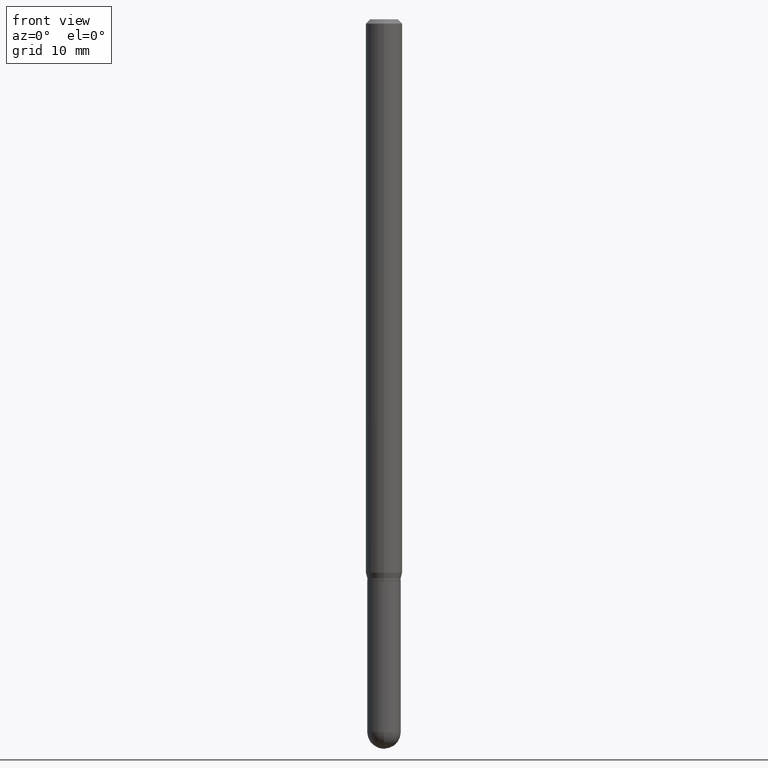
[diagram: clean part render]
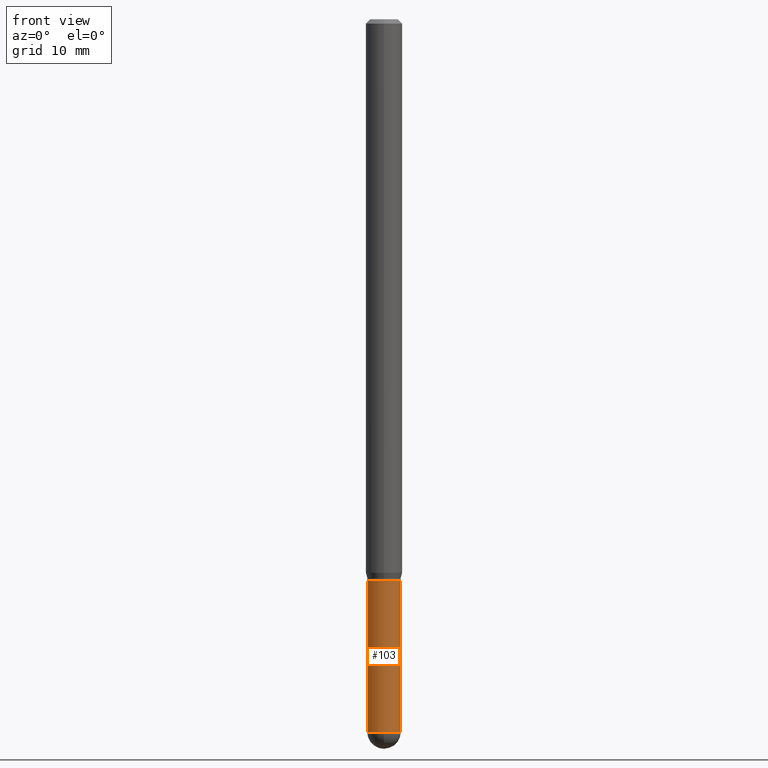
[diagram: same view with one face highlighted and labeled with its STEP entity id]
A machine part, front view. The second image highlights one B-rep face of the part: STEP entity #103.
In plain terms, the highlighted cylindrical surface (edge-blend (fillet) strip) has radius 1.4605 mm, axis along (-0, 0, 1).
Its self-contained STEP definition (entity closure, byte-faithful):
#13 = EDGE_CURVE ( 'NONE', #428, #29, #503, .T. ) ;
#29 = VERTEX_POINT ( 'NONE', #270 ) ;
#36 = DIRECTION ( 'NONE',  ( -2.445468806185136597E-29, 3.491481338843145583E-15, 1.000000000000000000 ) ) ;
#44 = CARTESIAN_POINT ( 'NONE',  ( 4.707527451906388285E-29, -6.721101577273056164E-15, -1.925000000000000044 ) ) ;
#51 = LINE ( 'NONE', #95, #54 ) ;
#54 = VECTOR ( 'NONE', #276, 39.37007874015748143 ) ;
#60 = DIRECTION ( 'NONE',  ( -2.445468806185136597E-29, 3.491481338843145583E-15, 1.000000000000000000 ) ) ;
#66 = CARTESIAN_POINT ( 'NONE',  ( 5.973057559107196227E-29, -8.527943170124383355E-15, -2.442499999999999893 ) ) ;
#72 = DIRECTION ( 'NONE',  ( 1.000000000000000000, -6.982962677686273810E-15, 0.000000000000000000 ) ) ;
#75 = DIRECTION ( 'NONE',  ( -2.445468806185136597E-29, 3.491481338843145583E-15, 1.000000000000000000 ) ) ;
#80 = EDGE_LOOP ( 'NONE', ( #196, #183, #355, #349, #440 ) ) ;
#95 = CARTESIAN_POINT ( 'NONE',  ( -0.05750000000000000250, 4.085620730620576246E-16, -2.828387676896570712E-30 ) ) ;
#103 = ADVANCED_FACE ( 'NONE', ( #385 ), #242, .T. ) ;
#104 = CARTESIAN_POINT ( 'NONE',  ( 0.05750000000000000250, -8.026042727665680963E-15, -2.442499999999999893 ) ) ;
#139 = EDGE_CURVE ( 'NONE', #282, #459, #482, .T. ) ;
#163 = DIRECTION ( 'NONE',  ( -2.445468806185136877E-29, 3.491481338843145188E-15, 1.000000000000000000 ) ) ;
#170 = DIRECTION ( 'NONE',  ( 1.000000000000000000, -6.982962677686273810E-15, 0.000000000000000000 ) ) ;
#180 = AXIS2_PLACEMENT_3D ( 'NONE', #460, #36, #416 ) ;
#183 = ORIENTED_EDGE ( 'NONE', *, *, #139, .T. ) ;
#196 = ORIENTED_EDGE ( 'NONE', *, *, #214, .F. ) ;
#197 = CARTESIAN_POINT ( 'NONE',  ( 5.973057559107196227E-29, -8.527943170124383355E-15, -2.442499999999999893 ) ) ;
#214 = EDGE_CURVE ( 'NONE', #282, #468, #51, .T. ) ;
#218 = AXIS2_PLACEMENT_3D ( 'NONE', #66, #60, #72 ) ;
#237 = CARTESIAN_POINT ( 'NONE',  ( 0.05750000000000000250, -4.015203539669603161E-16, 2.803801646082662941E-30 ) ) ;
#242 = CYLINDRICAL_SURFACE ( 'NONE', #180, 0.05750000000000000250 ) ;
#270 = CARTESIAN_POINT ( 'NONE',  ( 0.05750000000000000250, -7.122621931240016973E-15, -1.925000000000000044 ) ) ;
#276 = DIRECTION ( 'NONE',  ( -2.445468806185136877E-29, 3.491481338843145188E-15, 1.000000000000000000 ) ) ;
#282 = VERTEX_POINT ( 'NONE', #447 ) ;
#287 = AXIS2_PLACEMENT_3D ( 'NONE', #44, #464, #170 ) ;
#289 = CARTESIAN_POINT ( 'NONE',  ( -4.085620730619970796E-16, -0.05750000000000843325, -2.442499999999999893 ) ) ;
#349 = ORIENTED_EDGE ( 'NONE', *, *, #13, .T. ) ;
#350 = DIRECTION ( 'NONE',  ( 1.000000000000000000, -6.982962677686273810E-15, 0.000000000000000000 ) ) ;
#355 = ORIENTED_EDGE ( 'NONE', *, *, #433, .T. ) ;
#368 = CARTESIAN_POINT ( 'NONE',  ( -0.05750000000000000250, -7.215960300636662578E-15, -1.925000000000000044 ) ) ;
#369 = AXIS2_PLACEMENT_3D ( 'NONE', #197, #75, #350 ) ;
#385 = FACE_OUTER_BOUND ( 'NONE', #80, .T. ) ;
#401 = CIRCLE ( 'NONE', #218, 0.05750000000000000250 ) ;
#411 = VECTOR ( 'NONE', #163, 39.37007874015748143 ) ;
#416 = DIRECTION ( 'NONE',  ( 1.000000000000000000, -6.982962677686265922E-15, 4.876176775795935232E-29 ) ) ;
#424 = CIRCLE ( 'NONE', #287, 0.05750000000000000250 ) ;
#428 = VERTEX_POINT ( 'NONE', #104 ) ;
#433 = EDGE_CURVE ( 'NONE', #459, #428, #401, .T. ) ;
#440 = ORIENTED_EDGE ( 'NONE', *, *, #494, .F. ) ;
#447 = CARTESIAN_POINT ( 'NONE',  ( -0.05750000000000000250, -7.215960300636662578E-15, -2.442499999999999893 ) ) ;
#459 = VERTEX_POINT ( 'NONE', #289 ) ;
#460 = CARTESIAN_POINT ( 'NONE',  ( 0.000000000000000000, 0.000000000000000000, 0.000000000000000000 ) ) ;
#464 = DIRECTION ( 'NONE',  ( -2.445468806185136597E-29, 3.491481338843145583E-15, 1.000000000000000000 ) ) ;
#468 = VERTEX_POINT ( 'NONE', #368 ) ;
#482 = CIRCLE ( 'NONE', #369, 0.05750000000000000250 ) ;
#494 = EDGE_CURVE ( 'NONE', #468, #29, #424, .T. ) ;
#503 = LINE ( 'NONE', #237, #411 ) ;